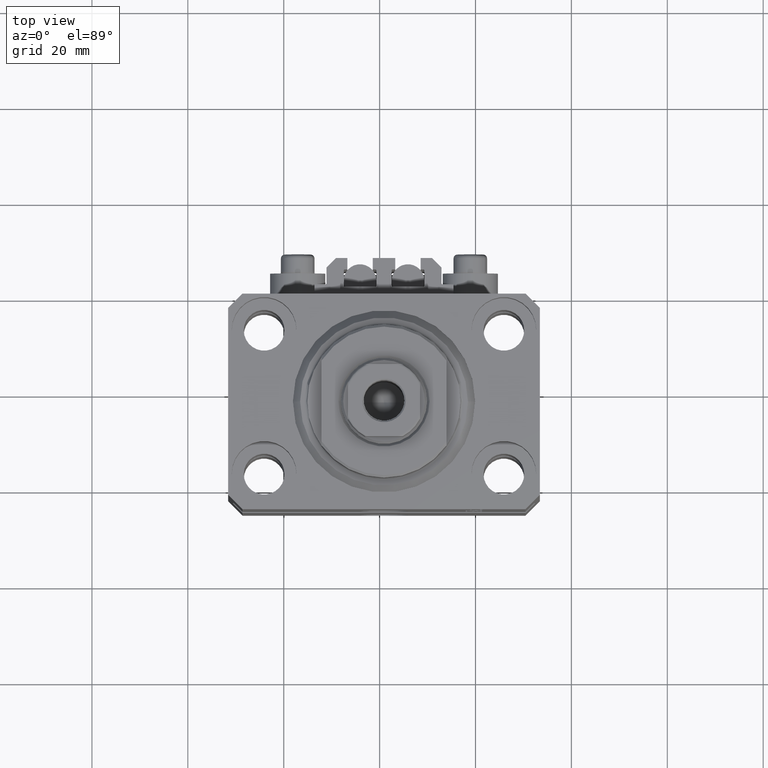
[diagram: clean part render]
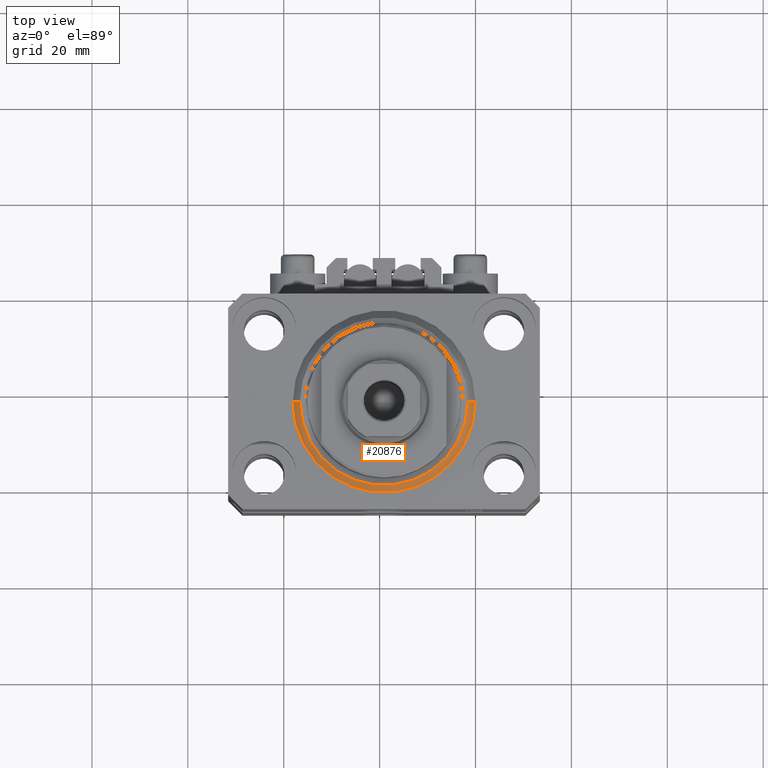
[diagram: same view with one face highlighted and labeled with its STEP entity id]
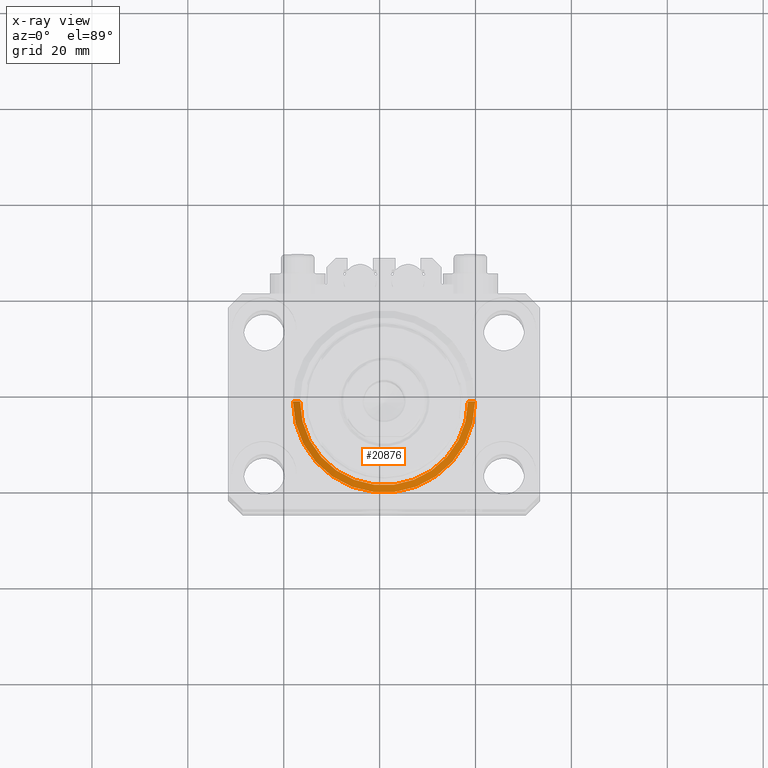
[diagram: x-ray of the same camera — body ghosted, the highlighted face saturated]
A machine part, top view. The second image highlights one B-rep face of the part: STEP entity #20876.
The next image is the same camera in x-ray: the body ghosted, the highlighted face saturated — about 0% of this face is hidden behind the body in this view.
In plain terms, the highlighted conical surface has half-angle 45 deg.
Its self-contained STEP definition (entity closure, byte-faithful):
#209 = CARTESIAN_POINT ( 'NONE',  ( -17.49999999999999289, 2.234980408443919215E-15, 0.000000000000000000 ) ) ;
#1736 = CARTESIAN_POINT ( 'NONE',  ( -19.00000000000000000, 0.000000000000000000, 1.500000000000004885 ) ) ;
#1888 = ORIENTED_EDGE ( 'NONE', *, *, #41134, .F. ) ;
#7574 = ORIENTED_EDGE ( 'NONE', *, *, #20312, .F. ) ;
#7754 = DIRECTION ( 'NONE',  ( 0.7071067811865483499, 0.000000000000000000, 0.7071067811865467956 ) ) ;
#9287 = DIRECTION ( 'NONE',  ( -0.000000000000000000, -0.000000000000000000, 1.000000000000000000 ) ) ;
#9515 = CARTESIAN_POINT ( 'NONE',  ( 0.000000000000000000, 0.000000000000000000, 1.500000000000004885 ) ) ;
#9619 = VECTOR ( 'NONE', #7754, 1000.000000000000000 ) ;
#11343 = VERTEX_POINT ( 'NONE', #14360 ) ;
#14360 = CARTESIAN_POINT ( 'NONE',  ( 19.00000000000000000, 2.326828918379970970E-15, 1.500000000000004885 ) ) ;
#15848 = CIRCLE ( 'NONE', #34442, 19.00000000000000000 ) ;
#16544 = AXIS2_PLACEMENT_3D ( 'NONE', #39127, #9287, #35484 ) ;
#17545 = ORIENTED_EDGE ( 'NONE', *, *, #21333, .T. ) ;
#18089 = VERTEX_POINT ( 'NONE', #21623 ) ;
#19167 = LINE ( 'NONE', #40510, #9619 ) ;
#20312 = EDGE_CURVE ( 'NONE', #18089, #28452, #31273, .T. ) ;
#20690 = DIRECTION ( 'NONE',  ( 1.000000000000000000, 0.000000000000000000, 0.000000000000000000 ) ) ;
#20876 = ADVANCED_FACE ( 'NONE', ( #31374 ), #29765, .T. ) ;
#21333 = EDGE_CURVE ( 'NONE', #18089, #11343, #19167, .T. ) ;
#21623 = CARTESIAN_POINT ( 'NONE',  ( 17.49999999999999289, 0.000000000000000000, 0.000000000000000000 ) ) ;
#24233 = ORIENTED_EDGE ( 'NONE', *, *, #40898, .F. ) ;
#28452 = VERTEX_POINT ( 'NONE', #209 ) ;
#28744 = LINE ( 'NONE', #32136, #43731 ) ;
#29765 = CONICAL_SURFACE ( 'NONE', #16544, 19.00000000000000000, 0.7853981633974492782 ) ;
#31273 = CIRCLE ( 'NONE', #38262, 17.49999999999999289 ) ;
#31374 = FACE_OUTER_BOUND ( 'NONE', #44049, .T. ) ;
#32136 = CARTESIAN_POINT ( 'NONE',  ( -19.00000000000000000, 2.326828918379970970E-15, 1.500000000000004885 ) ) ;
#34131 = VERTEX_POINT ( 'NONE', #1736 ) ;
#34442 = AXIS2_PLACEMENT_3D ( 'NONE', #9515, #39118, #20690 ) ;
#34702 = DIRECTION ( 'NONE',  ( 1.000000000000000000, 0.000000000000000000, 0.000000000000000000 ) ) ;
#35484 = DIRECTION ( 'NONE',  ( 1.000000000000000000, 0.000000000000000000, 0.000000000000000000 ) ) ;
#38262 = AXIS2_PLACEMENT_3D ( 'NONE', #46123, #46354, #34702 ) ;
#39118 = DIRECTION ( 'NONE',  ( -0.000000000000000000, -0.000000000000000000, 1.000000000000000000 ) ) ;
#39127 = CARTESIAN_POINT ( 'NONE',  ( 0.000000000000000000, 0.000000000000000000, 1.500000000000004885 ) ) ;
#40510 = CARTESIAN_POINT ( 'NONE',  ( 19.00000000000000000, 0.000000000000000000, 1.500000000000004885 ) ) ;
#40898 = EDGE_CURVE ( 'NONE', #28452, #34131, #28744, .T. ) ;
#41134 = EDGE_CURVE ( 'NONE', #34131, #11343, #15848, .T. ) ;
#43534 = DIRECTION ( 'NONE',  ( -0.7071067811865483499, 8.659560562354943952E-17, 0.7071067811865467956 ) ) ;
#43731 = VECTOR ( 'NONE', #43534, 1000.000000000000000 ) ;
#44049 = EDGE_LOOP ( 'NONE', ( #24233, #7574, #17545, #1888 ) ) ;
#46123 = CARTESIAN_POINT ( 'NONE',  ( 0.000000000000000000, 0.000000000000000000, 0.000000000000000000 ) ) ;
#46354 = DIRECTION ( 'NONE',  ( -0.000000000000000000, -0.000000000000000000, -1.000000000000000000 ) ) ;